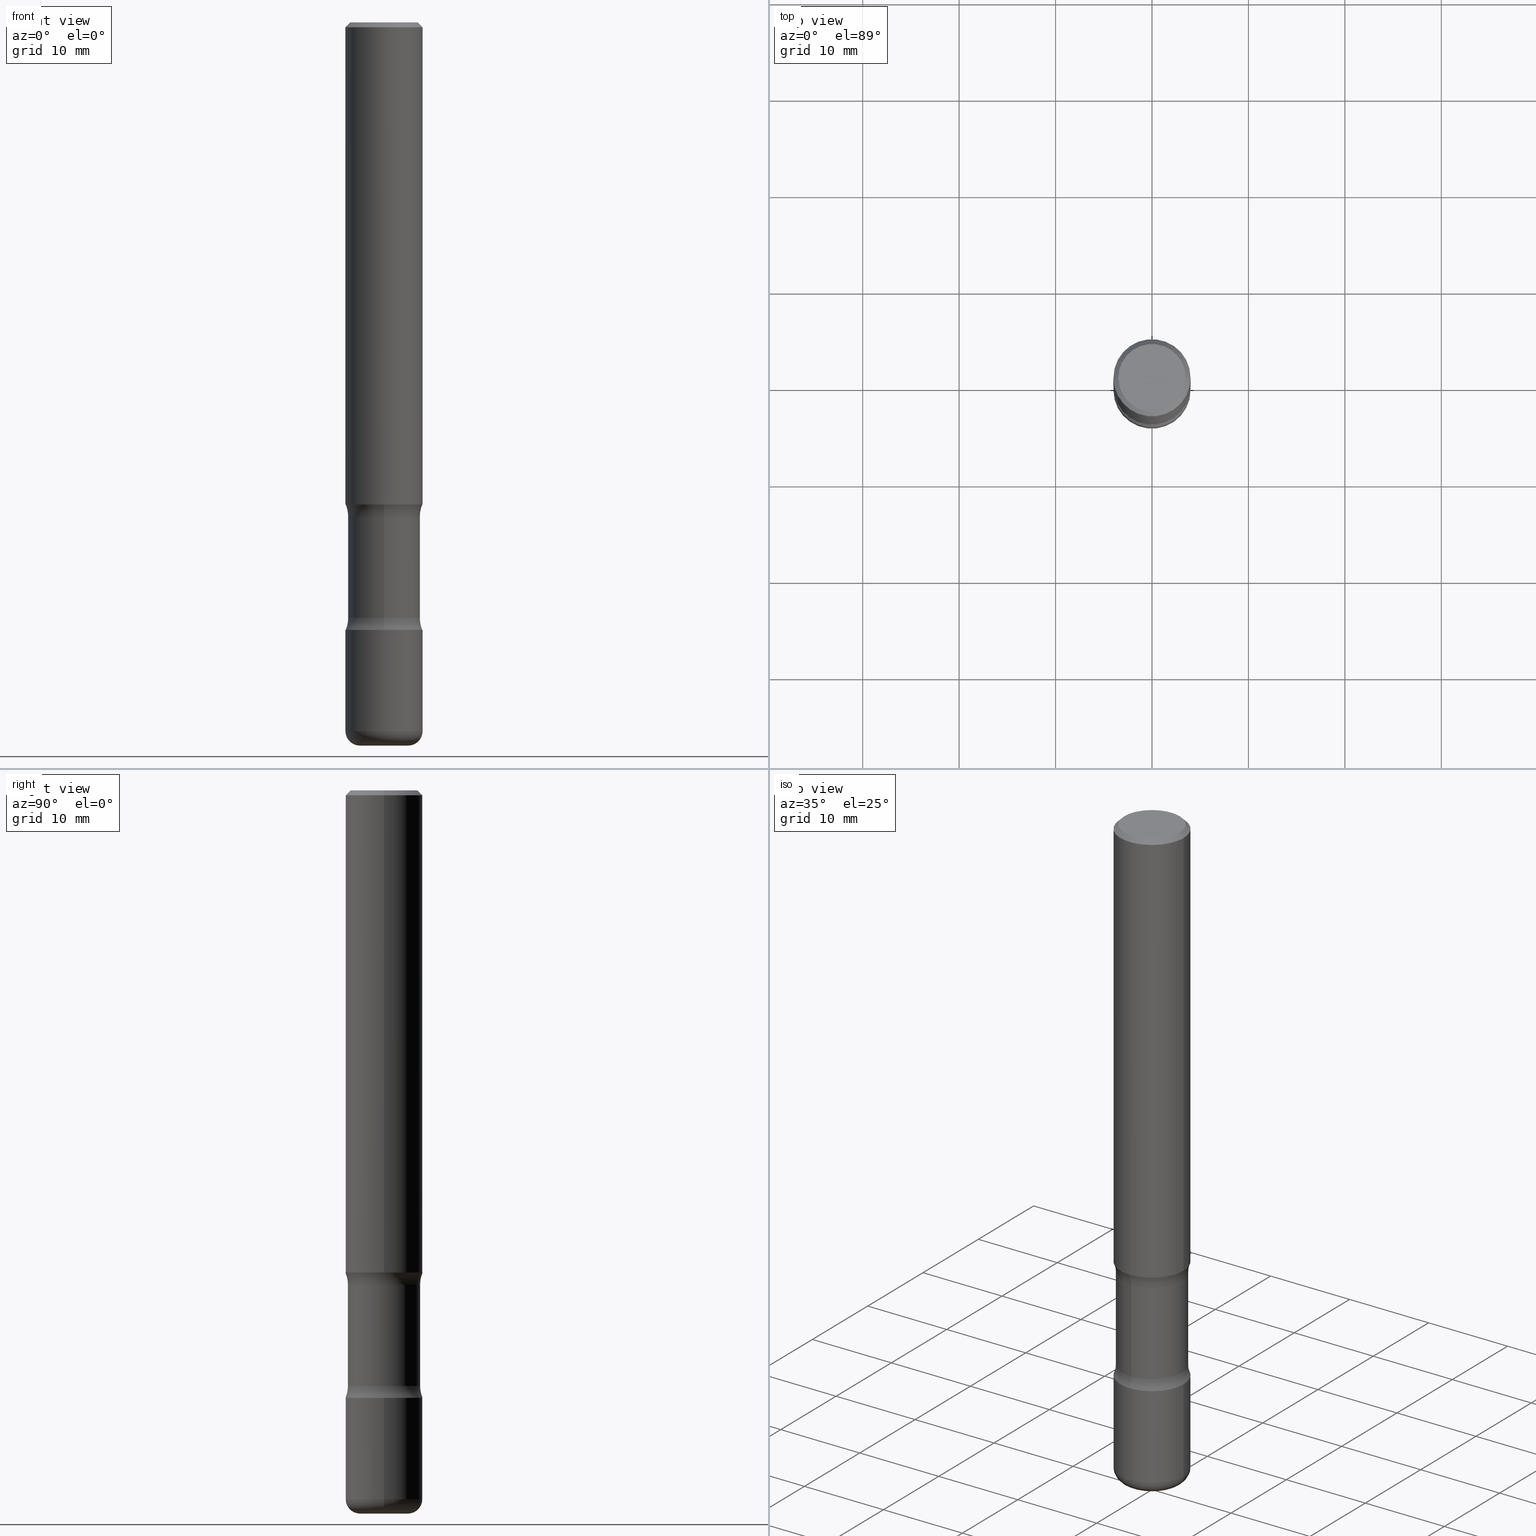
[diagram: canonical four-view strip — front | top / right | iso, engineering-drawing reading convention]
A machine part, canonical four-view strip (front | top / right | iso — engineering-drawing reading convention). The complete STEP part file that produces these views, byte-faithful:
ISO-10303-21;
HEADER;
FILE_DESCRIPTION (( 'STEP AP203' ),
    '1' );
FILE_NAME ('44796.STEP',
    '2024-03-02T03:25:42',
    ( '' ),
    ( '' ),
    'SwSTEP 2.0',
    'SolidWorks 2023',
    '' );
FILE_SCHEMA (( 'CONFIG_CONTROL_DESIGN' ));
ENDSEC;

DATA;
#1 = DIRECTION ( 'NONE',  ( 2.474888810202925163E-29, -3.449350218607033250E-15, -1.000000000000000000 ) ) ;
#2 = VERTEX_POINT ( 'NONE', #59 ) ;
#3 = AXIS2_PLACEMENT_3D ( 'NONE', #246, #336, #368 ) ;
#4 = ORIENTED_EDGE ( 'NONE', *, *, #415, .T. ) ;
#5 = EDGE_CURVE ( 'NONE', #211, #49, #96, .T. ) ;
#6 = VERTEX_POINT ( 'NONE', #195 ) ;
#7 = ORIENTED_EDGE ( 'NONE', *, *, #556, .F. ) ;
#8 = ORIENTED_EDGE ( 'NONE', *, *, #556, .T. ) ;
#9 = AXIS2_PLACEMENT_3D ( 'NONE', #123, #296, #466 ) ;
#10 =( LENGTH_UNIT ( ) NAMED_UNIT ( * ) SI_UNIT ( $, .METRE. ) );
#11 = ADVANCED_FACE ( 'NONE', ( #318 ), #238, .F. ) ;
#12 =( GEOMETRIC_REPRESENTATION_CONTEXT ( 3 ) GLOBAL_UNCERTAINTY_ASSIGNED_CONTEXT ( ( #310 ) ) GLOBAL_UNIT_ASSIGNED_CONTEXT ( ( #283, #321, #417 ) ) REPRESENTATION_CONTEXT ( 'NONE', 'WORKASPACE' ) );
#13 = DIMENSIONAL_EXPONENTS ( 1.000000000000000000, 0.000000000000000000, 0.000000000000000000, 0.000000000000000000, 0.000000000000000000, 0.000000000000000000, 0.000000000000000000 ) ;
#14 = CARTESIAN_POINT ( 'NONE',  ( 0.000000000000000000, 0.000000000000000000, 0.000000000000000000 ) ) ;
#15 = ORIENTED_EDGE ( 'NONE', *, *, #443, .T. ) ;
#16 = CARTESIAN_POINT ( 'NONE',  ( 7.076453084457931092E-29, -1.010329955021041128E-14, -2.893700000000000383 ) ) ;
#17 = DIRECTION ( 'NONE',  ( 1.000000000000000000, -6.982962677686269866E-15, 0.000000000000000000 ) ) ;
#18 = EDGE_CURVE ( 'NONE', #190, #436, #237, .T. ) ;
#19 = DIRECTION ( 'NONE',  ( 1.000000000000000000, -6.982962677686265922E-15, 0.000000000000000000 ) ) ;
#20 = CARTESIAN_POINT ( 'NONE',  ( -0.09840000000000016789, -9.297333393368175082E-15, -2.952800000000000757 ) ) ;
#21 = CIRCLE ( 'NONE', #521, 0.1473500000000000087 ) ;
#22 = LOCAL_TIME ( 22, 25, 42.00000000000000000, #151 ) ;
#23 = ORIENTED_EDGE ( 'NONE', *, *, #143, .T. ) ;
#24 = DIRECTION ( 'NONE',  ( 2.438088387897960049E-29, -3.491481338843145188E-15, -1.000000000000000000 ) ) ;
#25 = PRODUCT_DEFINITION_SHAPE ( 'NONE', 'NONE',  #245 ) ;
#26 = PERSON_AND_ORGANIZATION ( #179, #87 ) ;
#27 = ORIENTED_EDGE ( 'NONE', *, *, #508, .F. ) ;
#28 = DIRECTION ( 'NONE',  ( 0.000000000000000000, 0.000000000000000000, 1.000000000000000000 ) ) ;
#29 = TOROIDAL_SURFACE ( 'NONE', #9, 0.2723499999999999810, 0.1250000000000000555 ) ;
#30 = DIRECTION ( 'NONE',  ( 6.982962677686265133E-15, 1.000000000000000000, -3.469013325287950138E-15 ) ) ;
#31 = DIRECTION ( 'NONE',  ( 2.474888810202925163E-29, -3.449350218607033250E-15, -1.000000000000000000 ) ) ;
#32 = MANIFOLD_SOLID_BREP ( 'Body-Move/Copy2[2]', #53 ) ;
#33 = DIRECTION ( 'NONE',  ( -1.000000000000000000, 6.982962677686265922E-15, -4.883557194083112340E-29 ) ) ;
#34 = PERSON_AND_ORGANIZATION_ROLE ( 'creator' ) ;
#35 = CYLINDRICAL_SURFACE ( 'NONE', #333, 0.1473500000000000087 ) ;
#36 = DIRECTION ( 'NONE',  ( -6.982962677686265922E-15, -1.000000000000000000, 0.000000000000000000 ) ) ;
#37 = EDGE_CURVE ( 'NONE', #130, #234, #95, .T. ) ;
#38 = CARTESIAN_POINT ( 'NONE',  ( 7.076453084457931092E-29, -1.010329955021041128E-14, -2.893700000000000383 ) ) ;
#39 = TOROIDAL_SURFACE ( 'NONE', #343, 0.2723500000000000365, 0.1250000000000000000 ) ;
#40 = CARTESIAN_POINT ( 'NONE',  ( 4.890937612370273159E-31, -6.982962677686291609E-17, -0.02000000000000000042 ) ) ;
#41 = LOCAL_TIME ( 22, 25, 42.00000000000000000, #490 ) ;
#42 = DIRECTION ( 'NONE',  ( 2.474888810202925163E-29, -3.449350218607033250E-15, -1.000000000000000000 ) ) ;
#43 = CARTESIAN_POINT ( 'NONE',  ( -0.1575000000000001399, -8.262680122716315885E-15, -2.480399999999999494 ) ) ;
#44 = DIRECTION ( 'NONE',  ( 6.982962677686265922E-15, 1.000000000000000000, -3.449350218607032856E-15 ) ) ;
#45 = ORIENTED_EDGE ( 'NONE', *, *, #390, .F. ) ;
#46 = EDGE_LOOP ( 'NONE', ( #484, #340 ) ) ;
#47 = EDGE_CURVE ( 'NONE', #355, #2, #322, .T. ) ;
#48 = CC_DESIGN_SECURITY_CLASSIFICATION ( #207, ( #157 ) ) ;
#49 = VERTEX_POINT ( 'NONE', #68 ) ;
#50 = CC_DESIGN_PERSON_AND_ORGANIZATION_ASSIGNMENT ( #69, #244, ( #104 ) ) ;
#51 = EDGE_CURVE ( 'NONE', #49, #234, #418, .T. ) ;
#52 = DIRECTION ( 'NONE',  ( -2.445468806185136597E-29, 3.491481338843145583E-15, 1.000000000000000000 ) ) ;
#53 = CLOSED_SHELL ( 'NONE', ( #396, #345, #112, #176, #272, #462 ) ) ;
#54 = AXIS2_PLACEMENT_3D ( 'NONE', #255, #560, #221 ) ;
#55 = DIRECTION ( 'NONE',  ( 6.860497997771530774E-15, 1.000000000000000000, 0.000000000000000000 ) ) ;
#56 = CC_DESIGN_APPROVAL ( #224, ( #207 ) ) ;
#57 = EDGE_LOOP ( 'NONE', ( #140, #175, #102, #153 ) ) ;
#58 = CARTESIAN_POINT ( 'NONE',  ( 0.000000000000000000, 0.000000000000000000, 0.000000000000000000 ) ) ;
#59 = CARTESIAN_POINT ( 'NONE',  ( 0.1374999999999999278, -1.046838268059731900E-15, 4.268512490107428597E-18 ) ) ;
#60 = LINE ( 'NONE', #258, #539 ) ;
#61 = DIRECTION ( 'NONE',  ( 1.000000000000000000, -6.982962677686268288E-15, 0.000000000000000000 ) ) ;
#62 = CARTESIAN_POINT ( 'NONE',  ( 7.076453084457931092E-29, -1.010329955021041128E-14, -2.893700000000000383 ) ) ;
#63 = CARTESIAN_POINT ( 'NONE',  ( -1.010894379971562693E-15, -0.1473500000000103061, -2.952799999999998981 ) ) ;
#64 = DIRECTION ( 'NONE',  ( 1.000000000000000000, -6.982962677686266711E-15, 0.000000000000000000 ) ) ;
#65 = DIRECTION ( 'NONE',  ( -2.445468806185136597E-29, 3.491481338843145583E-15, 1.000000000000000000 ) ) ;
#66 = APPROVAL ( #370, 'UNSPECIFIED' ) ;
#67 = MECHANICAL_CONTEXT ( 'NONE', #328, 'mechanical' ) ;
#68 = CARTESIAN_POINT ( 'NONE',  ( -0.1575000000000003064, -8.984194741388252103E-15, -2.893700000000000383 ) ) ;
#69 = PERSON_AND_ORGANIZATION ( #179, #87 ) ;
#70 = CARTESIAN_POINT ( 'NONE',  ( 7.234878300801473340E-29, -1.028974335613649852E-14, -2.952799999999999869 ) ) ;
#71 = APPROVAL_STATUS ( 'not_yet_approved' ) ;
#72 = CIRCLE ( 'NONE', #391, 0.05910000000000026343 ) ;
#73 = AXIS2_PLACEMENT_3D ( 'NONE', #291, #299, #337 ) ;
#74 = AXIS2_PLACEMENT_3D ( 'NONE', #270, #108, #487 ) ;
#75 = DIRECTION ( 'NONE',  ( 2.474888810202925163E-29, -3.449350218607033250E-15, -1.000000000000000000 ) ) ;
#76 = DIRECTION ( 'NONE',  ( -2.438088387897960049E-29, 3.491481338843145188E-15, 1.000000000000000000 ) ) ;
#77 = EDGE_CURVE ( 'NONE', #439, #6, #273, .T. ) ;
#78 = CARTESIAN_POINT ( 'NONE',  ( 5.945080357611152317E-29, -8.487999141114716497E-15, -2.431059575397043204 ) ) ;
#79 = DATE_TIME_ROLE ( 'classification_date' ) ;
#80 = FACE_OUTER_BOUND ( 'NONE', #301, .T. ) ;
#81 = ORIENTED_EDGE ( 'NONE', *, *, #519, .T. ) ;
#82 = FACE_OUTER_BOUND ( 'NONE', #142, .T. ) ;
#83 = FACE_OUTER_BOUND ( 'NONE', #147, .T. ) ;
#84 = CIRCLE ( 'NONE', #379, 0.1574999999999999178 ) ;
#85 = TOROIDAL_SURFACE ( 'NONE', #421, 0.09840000000000016789, 0.05910000000000024956 ) ;
#86 = DIRECTION ( 'NONE',  ( -2.445468806185136597E-29, 3.491481338843145583E-15, 1.000000000000000000 ) ) ;
#87 = ORGANIZATION ( 'UNSPECIFIED', 'UNSPECIFIED', '' ) ;
#88 = CC_DESIGN_PERSON_AND_ORGANIZATION_ASSIGNMENT ( #202, #549, ( #207 ) ) ;
#89 = DIRECTION ( 'NONE',  ( 6.982962677686265133E-15, 1.000000000000000000, -3.707971487837480522E-15 ) ) ;
#90 = ORIENTED_EDGE ( 'NONE', *, *, #18, .T. ) ;
#91 = EDGE_CURVE ( 'NONE', #414, #211, #72, .T. ) ;
#92 = FACE_OUTER_BOUND ( 'NONE', #57, .T. ) ;
#93 = ORIENTED_EDGE ( 'NONE', *, *, #91, .F. ) ;
#94 = ORIENTED_EDGE ( 'NONE', *, *, #77, .F. ) ;
#95 = CIRCLE ( 'NONE', #205, 0.1575000000000001399 ) ;
#96 = CIRCLE ( 'NONE', #367, 0.1575000000000001954 ) ;
#97 = AXIS2_PLACEMENT_3D ( 'NONE', #191, #52, #61 ) ;
#98 = ADVANCED_FACE ( 'NONE', ( #468 ), #429, .T. ) ;
#99 = CARTESIAN_POINT ( 'NONE',  ( 1.901809885267914178E-15, 0.2723499999999915433, -2.431059575397044092 ) ) ;
#100 = VERTEX_POINT ( 'NONE', #458 ) ;
#101 = CIRCLE ( 'NONE', #369, 0.09840000000000016789 ) ;
#102 = ORIENTED_EDGE ( 'NONE', *, *, #91, .T. ) ;
#103 = DIRECTION ( 'NONE',  ( -2.445468806185136597E-29, 3.491481338843145583E-15, 1.000000000000000000 ) ) ;
#104 = PRODUCT ( '44796', '44796', '', ( #67 ) ) ;
#105 = ORIENTED_EDGE ( 'NONE', *, *, #249, .F. ) ;
#106 = FACE_OUTER_BOUND ( 'NONE', #181, .T. ) ;
#107 = APPLICATION_CONTEXT ( 'configuration controlled 3d designs of mechanical parts and assemblies' ) ;
#108 = DIRECTION ( 'NONE',  ( 2.474888810202925163E-29, -3.449350218607033250E-15, -1.000000000000000000 ) ) ;
#109 = ORIENTED_EDGE ( 'NONE', *, *, #77, .T. ) ;
#110 = CALENDAR_DATE ( 2024, 1, 3 ) ;
#111 = AXIS2_PLACEMENT_3D ( 'NONE', #210, #76, #334 ) ;
#112 = ADVANCED_FACE ( 'NONE', ( #558 ), #136, .T. ) ;
#113 = ORIENTED_EDGE ( 'NONE', *, *, #5, .T. ) ;
#114 = DIRECTION ( 'NONE',  ( 1.000000000000000000, -6.982962677686267499E-15, 4.876176775795935232E-29 ) ) ;
#115 = PERSON_AND_ORGANIZATION_ROLE ( 'creator' ) ;
#116 = DIRECTION ( 'NONE',  ( -2.445468806185136877E-29, 3.491481338843145188E-15, 1.000000000000000000 ) ) ;
#117 = EDGE_CURVE ( 'NONE', #126, #453, #84, .T. ) ;
#118 = DIRECTION ( 'NONE',  ( -2.445468806185136597E-29, 3.491481338843145583E-15, 1.000000000000000000 ) ) ;
#119 = CIRCLE ( 'NONE', #137, 0.1575000000000001676 ) ;
#120 = CARTESIAN_POINT ( 'NONE',  ( 1.901809885267903923E-15, 0.2723499999999929866, -2.017840424602957317 ) ) ;
#121 = DATE_AND_TIME ( #504, #138 ) ;
#122 = PLANE ( 'NONE',  #111 ) ;
#123 = CARTESIAN_POINT ( 'NONE',  ( 4.934565814225900815E-29, -7.045252187264551691E-15, -2.017840424602956428 ) ) ;
#124 = CARTESIAN_POINT ( 'NONE',  ( 4.920957309659253149E-29, -7.064740340351969652E-15, -2.017840424602956428 ) ) ;
#125 = CARTESIAN_POINT ( 'NONE',  ( -1.567689451104442985E-28, -4.310070607982313080E-14, -2.952800000000000313 ) ) ;
#126 = VERTEX_POINT ( 'NONE', #250 ) ;
#127 = AXIS2_PLACEMENT_3D ( 'NONE', #425, #559, #263 ) ;
#128 = ADVANCED_FACE ( 'NONE', ( #495 ), #338, .T. ) ;
#129 = DIRECTION ( 'NONE',  ( -2.445468806185136597E-29, 3.491481338843145583E-15, 1.000000000000000000 ) ) ;
#130 = VERTEX_POINT ( 'NONE', #509 ) ;
#131 = ORIENTED_EDGE ( 'NONE', *, *, #51, .F. ) ;
#132 = CC_DESIGN_PERSON_AND_ORGANIZATION_ASSIGNMENT ( #372, #34, ( #245 ) ) ;
#133 = ORIENTED_EDGE ( 'NONE', *, *, #481, .T. ) ;
#134 = EDGE_LOOP ( 'NONE', ( #349, #476, #386, #93 ) ) ;
#135 = EDGE_CURVE ( 'NONE', #2, #355, #483, .T. ) ;
#136 = CONICAL_SURFACE ( 'NONE', #520, 0.1574999999999999178, 0.7853981633974479459 ) ;
#137 = AXIS2_PLACEMENT_3D ( 'NONE', #150, #455, #204 ) ;
#138 = LOCAL_TIME ( 22, 25, 42.00000000000000000, #166 ) ;
#139 = CC_DESIGN_DATE_AND_TIME_ASSIGNMENT ( #422, #424, ( #245 ) ) ;
#140 = ORIENTED_EDGE ( 'NONE', *, *, #305, .F. ) ;
#141 = CARTESIAN_POINT ( 'NONE',  ( 7.220980290903473546E-29, -1.030964609733604168E-14, -2.952800000000000757 ) ) ;
#142 = EDGE_LOOP ( 'NONE', ( #243, #225, #269, #480 ) ) ;
#143 = EDGE_CURVE ( 'NONE', #178, #439, #351, .T. ) ;
#144 = DIRECTION ( 'NONE',  ( -2.445468806185136597E-29, 3.491481338843145583E-15, 1.000000000000000000 ) ) ;
#145 = CIRCLE ( 'NONE', #54, 0.1250000000000000000 ) ;
#146 = CARTESIAN_POINT ( 'NONE',  ( 4.798845244918734808E-29, -6.894547935961596556E-15, -1.968499999999999694 ) ) ;
#147 = EDGE_LOOP ( 'NONE', ( #4, #15, #193, #346 ) ) ;
#148 = DIRECTION ( 'NONE',  ( 1.000000000000000000, -6.982962677686267499E-15, 4.876176775795935232E-29 ) ) ;
#149 = ORIENTED_EDGE ( 'NONE', *, *, #361, .T. ) ;
#150 = CARTESIAN_POINT ( 'NONE',  ( 4.813905344975440714E-29, -6.872981015512730918E-15, -1.968499999999999694 ) ) ;
#151 = COORDINATED_UNIVERSAL_TIME_OFFSET ( 5, 0, .BEHIND. ) ;
#152 = ADVANCED_FACE ( 'NONE', ( #285 ), #513, .F. ) ;
#153 = ORIENTED_EDGE ( 'NONE', *, *, #332, .F. ) ;
#154 = DIRECTION ( 'NONE',  ( 2.474888810202925163E-29, -3.449350218607032856E-15, -1.000000000000000000 ) ) ;
#155 = DATE_AND_TIME ( #542, #41 ) ;
#156 = CONICAL_SURFACE ( 'NONE', #73, 0.1574999999999999178, 0.7853981633974479459 ) ;
#157 = PRODUCT_DEFINITION_FORMATION_WITH_SPECIFIED_SOURCE ( 'ANY', '', #104, .NOT_KNOWN. ) ;
#158 = CARTESIAN_POINT ( 'NONE',  ( -0.1575000000000001676, 1.119104808822158984E-15, -7.747322767151485392E-30 ) ) ;
#159 = CARTESIAN_POINT ( 'NONE',  ( 1.099816621735635798E-15, 0.1574999999999932565, -1.968500000000000361 ) ) ;
#160 = EDGE_LOOP ( 'NONE', ( #304, #317 ) ) ;
#161 = CARTESIAN_POINT ( 'NONE',  ( 4.890937612370273159E-31, -6.982962677686291609E-17, -0.02000000000000000042 ) ) ;
#162 = CALENDAR_DATE ( 2024, 1, 3 ) ;
#163 = LINE ( 'NONE', #330, #324 ) ;
#164 = DIRECTION ( 'NONE',  ( -2.445468806185136597E-29, 3.491481338843145583E-15, 1.000000000000000000 ) ) ;
#165 = EDGE_CURVE ( 'NONE', #355, #126, #553, .T. ) ;
#166 = COORDINATED_UNIVERSAL_TIME_OFFSET ( 5, 0, .BEHIND. ) ;
#167 = DIRECTION ( 'NONE',  ( 1.000000000000000000, -6.982962677686267499E-15, 0.000000000000000000 ) ) ;
#168 = AXIS2_PLACEMENT_3D ( 'NONE', #452, #489, #365 ) ;
#169 = VECTOR ( 'NONE', #353, 39.37007874015748143 ) ;
#170 = APPROVAL_PERSON_ORGANIZATION ( #254, #224, #381 ) ;
#171 = DIRECTION ( 'NONE',  ( -2.445468806185136597E-29, 3.491481338843145583E-15, 1.000000000000000000 ) ) ;
#172 = CARTESIAN_POINT ( 'NONE',  ( 7.220980290903473546E-29, -1.030964609733604168E-14, -2.952800000000000757 ) ) ;
#173 = CARTESIAN_POINT ( 'NONE',  ( 0.09840000000000016789, -1.079042307769474191E-14, -2.893700000000000383 ) ) ;
#174 = CARTESIAN_POINT ( 'NONE',  ( 5.945080357611152317E-29, -8.487999141114716497E-15, -2.431059575397043204 ) ) ;
#175 = ORIENTED_EDGE ( 'NONE', *, *, #286, .T. ) ;
#176 = ADVANCED_FACE ( 'NONE', ( #292 ), #371, .F. ) ;
#177 = CARTESIAN_POINT ( 'NONE',  ( 4.813905344975440714E-29, -6.872981015512730918E-15, -1.968499999999999694 ) ) ;
#178 = VERTEX_POINT ( 'NONE', #423 ) ;
#179 = PERSON ( 'UNSPECIFIED', 'UNSPECIFIED', 'UNSPECIFIED', ('UNSPECIFIED'), ('UNSPECIFIED'), ('UNSPECIFIED') ) ;
#180 = ORIENTED_EDGE ( 'NONE', *, *, #212, .F. ) ;
#181 = EDGE_LOOP ( 'NONE', ( #229, #81, #7, #533 ) ) ;
#182 = ADVANCED_FACE ( 'NONE', ( #463 ), #544, .T. ) ;
#183 = ORIENTED_EDGE ( 'NONE', *, *, #481, .F. ) ;
#184 = EDGE_LOOP ( 'NONE', ( #105, #271 ) ) ;
#185 = CIRCLE ( 'NONE', #168, 0.1473499999999999810 ) ;
#186 = EDGE_LOOP ( 'NONE', ( #94, #488 ) ) ;
#187 = CIRCLE ( 'NONE', #555, 0.1575000000000001399 ) ;
#188 = FACE_OUTER_BOUND ( 'NONE', #395, .T. ) ;
#189 = CC_DESIGN_PERSON_AND_ORGANIZATION_ASSIGNMENT ( #26, #457, ( #157 ) ) ;
#190 = VERTEX_POINT ( 'NONE', #288 ) ;
#191 = CARTESIAN_POINT ( 'NONE',  ( 6.065740826861612418E-29, -8.660270312866537270E-15, -2.480399999999999494 ) ) ;
#192 = EDGE_CURVE ( 'NONE', #357, #233, #21, .T. ) ;
#193 = ORIENTED_EDGE ( 'NONE', *, *, #192, .F. ) ;
#194 = CARTESIAN_POINT ( 'NONE',  ( 0.000000000000000000, 0.000000000000000000, 0.000000000000000000 ) ) ;
#195 = CARTESIAN_POINT ( 'NONE',  ( -1.080528434648969237E-15, -0.1575000000000070233, -1.968499999999999472 ) ) ;
#196 = PRODUCT_RELATED_PRODUCT_CATEGORY ( 'detail', '', ( #104 ) ) ;
#197 = VECTOR ( 'NONE', #420, 39.37007874015748143 ) ;
#198 = ORIENTED_EDGE ( 'NONE', *, *, #543, .T. ) ;
#199 = ADVANCED_FACE ( 'NONE', ( #82 ), #29, .F. ) ;
#200 = CYLINDRICAL_SURFACE ( 'NONE', #218, 0.1575000000000000289 ) ;
#201 = DIRECTION ( 'NONE',  ( -2.445468806185136597E-29, 3.491481338843145583E-15, 1.000000000000000000 ) ) ;
#202 = PERSON_AND_ORGANIZATION ( #179, #87 ) ;
#203 = DIRECTION ( 'NONE',  ( 6.982962677686265922E-15, 1.000000000000000000, -3.449350218607033250E-15 ) ) ;
#204 = DIRECTION ( 'NONE',  ( 1.000000000000000000, -6.982962677686267499E-15, 0.000000000000000000 ) ) ;
#205 = AXIS2_PLACEMENT_3D ( 'NONE', #280, #201, #364 ) ;
#206 = AXIS2_PLACEMENT_3D ( 'NONE', #14, #447, #148 ) ;
#207 = SECURITY_CLASSIFICATION ( '', '', #214 ) ;
#208 = CARTESIAN_POINT ( 'NONE',  ( -1.043851414335219820E-46, 1.490343170380447200E-32, 4.268512490100411279E-18 ) ) ;
#209 = CARTESIAN_POINT ( 'NONE',  ( 0.000000000000000000, 0.000000000000000000, 0.000000000000000000 ) ) ;
#210 = CARTESIAN_POINT ( 'NONE',  ( 4.813905344975440714E-29, -6.872981015512730918E-15, -1.968499999999999694 ) ) ;
#211 = VERTEX_POINT ( 'NONE', #506 ) ;
#212 = EDGE_CURVE ( 'NONE', #436, #233, #145, .T. ) ;
#213 = DIRECTION ( 'NONE',  ( -6.982962677686266711E-15, -1.000000000000000000, 3.491481338843145583E-15 ) ) ;
#214 = SECURITY_CLASSIFICATION_LEVEL ( 'unclassified' ) ;
#215 = CARTESIAN_POINT ( 'NONE',  ( 1.028939550557143658E-15, 0.1473499999999897114, -2.952800000000000313 ) ) ;
#216 = DIRECTION ( 'NONE',  ( 0.7071067811865472397, -7.319954787623254468E-15, -0.7071067811865477948 ) ) ;
#217 = DIRECTION ( 'NONE',  ( 1.000000000000000000, -6.982962677686265922E-15, 0.000000000000000000 ) ) ;
#218 = AXIS2_PLACEMENT_3D ( 'NONE', #58, #534, #527 ) ;
#219 = DIRECTION ( 'NONE',  ( 6.982962677686265133E-15, 1.000000000000000000, -3.707971487837479733E-15 ) ) ;
#220 = CARTESIAN_POINT ( 'NONE',  ( 1.028939550557130839E-15, 0.1473499999999915433, -2.431059575397043648 ) ) ;
#221 = DIRECTION ( 'NONE',  ( 6.860497997771530774E-15, 1.000000000000000000, 0.000000000000000000 ) ) ;
#222 = DIRECTION ( 'NONE',  ( -2.445468806185136597E-29, 3.491481338843145583E-15, 1.000000000000000000 ) ) ;
#223 = EDGE_LOOP ( 'NONE', ( #389, #442, #393, #511 ) ) ;
#224 = APPROVAL ( #427, 'UNSPECIFIED' ) ;
#225 = ORIENTED_EDGE ( 'NONE', *, *, #469, .T. ) ;
#226 = MANIFOLD_SOLID_BREP ( 'Body-Move/Copy2[4]', #267 ) ;
#227 = CIRCLE ( 'NONE', #74, 0.1575000000000001399 ) ;
#228 = ORIENTED_EDGE ( 'NONE', *, *, #443, .F. ) ;
#229 = ORIENTED_EDGE ( 'NONE', *, *, #249, .T. ) ;
#230 = CC_DESIGN_DATE_AND_TIME_ASSIGNMENT ( #121, #79, ( #207 ) ) ;
#231 = AXIS2_PLACEMENT_3D ( 'NONE', #515, #129, #167 ) ;
#232 = MANIFOLD_SOLID_BREP ( 'Body-Move/Copy2[1]', #501 ) ;
#233 = VERTEX_POINT ( 'NONE', #341 ) ;
#234 = VERTEX_POINT ( 'NONE', #43 ) ;
#235 = CARTESIAN_POINT ( 'NONE',  ( -0.1575000000000001676, -2.352300512322635166E-15, -1.968499999999999694 ) ) ;
#236 = ADVANCED_FACE ( 'NONE', ( #387 ), #39, .F. ) ;
#237 = CIRCLE ( 'NONE', #448, 0.1575000000000001399 ) ;
#238 = PLANE ( 'NONE',  #410 ) ;
#239 = CIRCLE ( 'NONE', #302, 0.09840000000000016789 ) ;
#240 = CIRCLE ( 'NONE', #492, 0.1250000000000000000 ) ;
#241 = ORIENTED_EDGE ( 'NONE', *, *, #135, .F. ) ;
#242 = APPROVAL_ROLE ( '' ) ;
#243 = ORIENTED_EDGE ( 'NONE', *, *, #361, .F. ) ;
#244 = PERSON_AND_ORGANIZATION_ROLE ( 'design_owner' ) ;
#245 = PRODUCT_DEFINITION ( 'UNKNOWN', '', #157, #261 ) ;
#246 = CARTESIAN_POINT ( 'NONE',  ( 9.601573681818610811E-16, 0.1374999999999999278, -4.779444278458821021E-16 ) ) ;
#247 = CALENDAR_DATE ( 2024, 1, 3 ) ;
#248 = CIRCLE ( 'NONE', #127, 0.05910000000000026343 ) ;
#249 = EDGE_CURVE ( 'NONE', #100, #486, #290, .T. ) ;
#250 = CARTESIAN_POINT ( 'NONE',  ( -0.1574999999999999178, 1.029986994958723590E-15, -0.02000000000000000042 ) ) ;
#251 = APPLICATION_PROTOCOL_DEFINITION ( 'international standard', 'config_control_design', 1994, #107 ) ;
#252 = FACE_OUTER_BOUND ( 'NONE', #186, .T. ) ;
#253 = DIRECTION ( 'NONE',  ( 2.474888810202925163E-29, -3.449350218607033250E-15, -1.000000000000000000 ) ) ;
#254 = PERSON_AND_ORGANIZATION ( #179, #87 ) ;
#255 = CARTESIAN_POINT ( 'NONE',  ( -1.868456629693017352E-15, -0.2723500000000085297, -2.431059575397042316 ) ) ;
#256 = CARTESIAN_POINT ( 'NONE',  ( 7.234878300801473340E-29, -1.028974335613649852E-14, -2.952799999999999869 ) ) ;
#257 = DIRECTION ( 'NONE',  ( 1.000000000000000000, -6.982962677686266711E-15, 0.000000000000000000 ) ) ;
#258 = CARTESIAN_POINT ( 'NONE',  ( 0.1574999999999999178, -1.150358061425878486E-15, -0.02000000000000000042 ) ) ;
#259 = DIRECTION ( 'NONE',  ( -6.982962677686265922E-15, -1.000000000000000000, 3.449350218607032856E-15 ) ) ;
#260 = EDGE_LOOP ( 'NONE', ( #113, #397, #277, #183 ) ) ;
#261 = DESIGN_CONTEXT ( 'detailed design', #107, 'design' ) ;
#262 = VERTEX_POINT ( 'NONE', #546 ) ;
#263 = DIRECTION ( 'NONE',  ( -1.000000000000000000, 7.105427357600993181E-15, 0.000000000000000000 ) ) ;
#264 = EDGE_LOOP ( 'NONE', ( #90, #198 ) ) ;
#265 = ORIENTED_EDGE ( 'NONE', *, *, #117, .T. ) ;
#266 = EDGE_CURVE ( 'NONE', #100, #453, #163, .T. ) ;
#267 = CLOSED_SHELL ( 'NONE', ( #366, #236, #199, #325, #375, #278, #152, #182 ) ) ;
#268 = AXIS2_PLACEMENT_3D ( 'NONE', #120, #33, #36 ) ;
#269 = ORIENTED_EDGE ( 'NONE', *, *, #523, .T. ) ;
#270 = CARTESIAN_POINT ( 'NONE',  ( 6.065740826861612418E-29, -8.660270312866537270E-15, -2.480399999999999494 ) ) ;
#271 = ORIENTED_EDGE ( 'NONE', *, *, #406, .F. ) ;
#272 = ADVANCED_FACE ( 'NONE', ( #510 ), #122, .F. ) ;
#273 = CIRCLE ( 'NONE', #315, 0.1575000000000001399 ) ;
#274 = AXIS2_PLACEMENT_3D ( 'NONE', #70, #547, #219 ) ;
#275 = EDGE_LOOP ( 'NONE', ( #180, #512, #516, #320 ) ) ;
#276 = APPROVAL ( #71, 'UNSPECIFIED' ) ;
#277 = ORIENTED_EDGE ( 'NONE', *, *, #37, .F. ) ;
#278 = ADVANCED_FACE ( 'NONE', ( #303 ), #557, .F. ) ;
#279 = ORIENTED_EDGE ( 'NONE', *, *, #475, .F. ) ;
#280 = CARTESIAN_POINT ( 'NONE',  ( 6.065740826861612418E-29, -8.660270312866537270E-15, -2.480399999999999494 ) ) ;
#281 = AXIS2_PLACEMENT_3D ( 'NONE', #497, #164, #114 ) ;
#282 = VECTOR ( 'NONE', #482, 39.37007874015748143 ) ;
#283 =( CONVERSION_BASED_UNIT ( 'INCH', #494 ) LENGTH_UNIT ( ) NAMED_UNIT ( #13 ) );
#284 = DIRECTION ( 'NONE',  ( -1.000000000000000000, 6.982962677686265922E-15, -4.876176775795935793E-29 ) ) ;
#285 = FACE_OUTER_BOUND ( 'NONE', #275, .T. ) ;
#286 = EDGE_CURVE ( 'NONE', #517, #414, #101, .T. ) ;
#287 = CARTESIAN_POINT ( 'NONE',  ( 0.1574999999999999178, -1.150358061425878486E-15, -0.02000000000000000042 ) ) ;
#288 = CARTESIAN_POINT ( 'NONE',  ( 1.099816621735648420E-15, 0.1574999999999914524, -2.480399999999999938 ) ) ;
#289 = COORDINATED_UNIVERSAL_TIME_OFFSET ( 5, 0, .BEHIND. ) ;
#290 = CIRCLE ( 'NONE', #231, 0.1575000000000001676 ) ;
#291 = CARTESIAN_POINT ( 'NONE',  ( 4.890937612370273159E-31, -6.982962677686291609E-17, -0.02000000000000000042 ) ) ;
#292 = FACE_OUTER_BOUND ( 'NONE', #46, .T. ) ;
#293 = DATE_AND_TIME ( #162, #554 ) ;
#294 = CARTESIAN_POINT ( 'NONE',  ( 7.076453084457931092E-29, -1.010329955021041128E-14, -2.893700000000000383 ) ) ;
#295 = EDGE_CURVE ( 'NONE', #178, #357, #461, .T. ) ;
#296 = DIRECTION ( 'NONE',  ( 2.474888810202925163E-29, -3.449350218607033250E-15, -1.000000000000000000 ) ) ;
#297 = CARTESIAN_POINT ( 'NONE',  ( -0.1374999999999999278, 9.950721815702923357E-16, 4.268512490093574228E-18 ) ) ;
#298 = DIRECTION ( 'NONE',  ( 2.438088387897960049E-29, -3.491481338843145188E-15, -1.000000000000000000 ) ) ;
#299 = DIRECTION ( 'NONE',  ( 2.445468806185136597E-29, -3.491481338843145583E-15, -1.000000000000000000 ) ) ;
#300 = AXIS2_PLACEMENT_3D ( 'NONE', #208, #171, #433 ) ;
#301 = EDGE_LOOP ( 'NONE', ( #518, #352, #23, #109 ) ) ;
#302 = AXIS2_PLACEMENT_3D ( 'NONE', #141, #314, #17 ) ;
#303 = FACE_OUTER_BOUND ( 'NONE', #264, .T. ) ;
#304 = ORIENTED_EDGE ( 'NONE', *, *, #37, .T. ) ;
#305 = EDGE_CURVE ( 'NONE', #517, #49, #248, .T. ) ;
#306 = ORIENTED_EDGE ( 'NONE', *, *, #165, .F. ) ;
#307 = AXIS2_PLACEMENT_3D ( 'NONE', #125, #298, #329 ) ;
#308 = TOROIDAL_SURFACE ( 'NONE', #316, 0.2723499999999999810, 0.1250000000000000555 ) ;
#309 = AXIS2_PLACEMENT_3D ( 'NONE', #209, #28, #327 ) ;
#310 = UNCERTAINTY_MEASURE_WITH_UNIT (LENGTH_MEASURE( 1.000000000000000082E-05 ), #283, 'distance_accuracy_value', 'NONE');
#311 = ADVANCED_FACE ( 'NONE', ( #92 ), #85, .T. ) ;
#312 = DIRECTION ( 'NONE',  ( 6.982962677686265133E-15, 1.000000000000000000, -3.469013325287950138E-15 ) ) ;
#313 = EDGE_LOOP ( 'NONE', ( #241, #536, #8, #306 ) ) ;
#314 = DIRECTION ( 'NONE',  ( -2.445468806185136597E-29, 3.491481338843145583E-15, 1.000000000000000000 ) ) ;
#315 = AXIS2_PLACEMENT_3D ( 'NONE', #426, #75, #30 ) ;
#316 = AXIS2_PLACEMENT_3D ( 'NONE', #500, #1, #428 ) ;
#317 = ORIENTED_EDGE ( 'NONE', *, *, #475, .T. ) ;
#318 = FACE_OUTER_BOUND ( 'NONE', #160, .T. ) ;
#319 = DIRECTION ( 'NONE',  ( 2.474888810202925163E-29, -3.449350218607033250E-15, -1.000000000000000000 ) ) ;
#320 = ORIENTED_EDGE ( 'NONE', *, *, #192, .T. ) ;
#321 =( NAMED_UNIT ( * ) PLANE_ANGLE_UNIT ( ) SI_UNIT ( $, .RADIAN. ) );
#322 = CIRCLE ( 'NONE', #350, 0.1374999999999999278 ) ;
#323 = DIRECTION ( 'NONE',  ( -2.445468806185136597E-29, 3.491481338843145583E-15, 1.000000000000000000 ) ) ;
#324 = VECTOR ( 'NONE', #467, 39.37007874015748143 ) ;
#325 = ADVANCED_FACE ( 'NONE', ( #80 ), #308, .F. ) ;
#326 = DIRECTION ( 'NONE',  ( 1.000000000000000000, -6.982962677686264344E-15, 0.000000000000000000 ) ) ;
#327 = DIRECTION ( 'NONE',  ( 1.000000000000000000, 0.000000000000000000, 0.000000000000000000 ) ) ;
#328 = APPLICATION_CONTEXT ( 'configuration controlled 3d designs of mechanical parts and assemblies' ) ;
#329 = DIRECTION ( 'NONE',  ( -1.000000000000000000, 6.982962677686265922E-15, -4.876176775795935793E-29 ) ) ;
#330 = CARTESIAN_POINT ( 'NONE',  ( 0.1575000000000000289, -1.099816621735587283E-15, 7.679978421878599434E-30 ) ) ;
#331 = APPROVAL_ROLE ( '' ) ;
#332 = EDGE_CURVE ( 'NONE', #49, #211, #503, .T. ) ;
#333 = AXIS2_PLACEMENT_3D ( 'NONE', #256, #42, #385 ) ;
#334 = DIRECTION ( 'NONE',  ( 1.000000000000000000, -6.982962677686265922E-15, 4.876176775795935793E-29 ) ) ;
#335 = AXIS2_PLACEMENT_3D ( 'NONE', #485, #103, #64 ) ;
#336 = DIRECTION ( 'NONE',  ( 2.438088387897960049E-29, -3.491481338843145188E-15, -1.000000000000000000 ) ) ;
#337 = DIRECTION ( 'NONE',  ( -1.000000000000000000, 6.982962677686266711E-15, 0.000000000000000000 ) ) ;
#338 = CYLINDRICAL_SURFACE ( 'NONE', #281, 0.1575000000000001676 ) ;
#339 = DIRECTION ( 'NONE',  ( 1.000000000000000000, -6.982962677686269866E-15, 0.000000000000000000 ) ) ;
#340 = ORIENTED_EDGE ( 'NONE', *, *, #135, .T. ) ;
#341 = CARTESIAN_POINT ( 'NONE',  ( -1.045711407310266063E-15, -0.1473500000000085020, -2.431059575397042760 ) ) ;
#342 = CARTESIAN_POINT ( 'NONE',  ( 5.943628762121094077E-29, -8.490077908476165751E-15, -2.431059575397043204 ) ) ;
#343 = AXIS2_PLACEMENT_3D ( 'NONE', #174, #388, #550 ) ;
#344 = ORIENTED_EDGE ( 'NONE', *, *, #295, .T. ) ;
#345 = ADVANCED_FACE ( 'NONE', ( #383 ), #156, .T. ) ;
#346 = ORIENTED_EDGE ( 'NONE', *, *, #295, .F. ) ;
#347 = ORIENTED_EDGE ( 'NONE', *, *, #47, .F. ) ;
#348 = APPROVAL_DATE_TIME ( #538, #224 ) ;
#349 = ORIENTED_EDGE ( 'NONE', *, *, #508, .T. ) ;
#350 = AXIS2_PLACEMENT_3D ( 'NONE', #524, #323, #493 ) ;
#351 = CIRCLE ( 'NONE', #268, 0.1250000000000000555 ) ;
#352 = ORIENTED_EDGE ( 'NONE', *, *, #415, .F. ) ;
#353 = DIRECTION ( 'NONE',  ( -2.445468806185136877E-29, 3.491481338843145188E-15, 1.000000000000000000 ) ) ;
#354 = CC_DESIGN_PERSON_AND_ORGANIZATION_ASSIGNMENT ( #460, #115, ( #157 ) ) ;
#355 = VERTEX_POINT ( 'NONE', #297 ) ;
#356 = LINE ( 'NONE', #479, #169 ) ;
#357 = VERTEX_POINT ( 'NONE', #220 ) ;
#358 = DIRECTION ( 'NONE',  ( -1.000000000000000000, 6.982962677686265922E-15, -4.883557194083112340E-29 ) ) ;
#359 = CIRCLE ( 'NONE', #97, 0.1575000000000001399 ) ;
#360 = ORIENTED_EDGE ( 'NONE', *, *, #530, .F. ) ;
#361 = EDGE_CURVE ( 'NONE', #262, #178, #399, .T. ) ;
#362 = APPROVAL_PERSON_ORGANIZATION ( #419, #276, #242 ) ;
#363 = CARTESIAN_POINT ( 'NONE',  ( 6.065740826861612418E-29, -8.660270312866537270E-15, -2.480399999999999494 ) ) ;
#364 = DIRECTION ( 'NONE',  ( 1.000000000000000000, -6.982962677686268288E-15, 0.000000000000000000 ) ) ;
#365 = DIRECTION ( 'NONE',  ( 6.982962677686265133E-15, 1.000000000000000000, -3.707971487837480522E-15 ) ) ;
#366 = ADVANCED_FACE ( 'NONE', ( #83 ), #35, .T. ) ;
#367 = AXIS2_PLACEMENT_3D ( 'NONE', #62, #65, #19 ) ;
#368 = DIRECTION ( 'NONE',  ( -1.000000000000000000, 6.982962677686265922E-15, -4.876176775795935793E-29 ) ) ;
#369 = AXIS2_PLACEMENT_3D ( 'NONE', #172, #471, #339 ) ;
#370 = APPROVAL_STATUS ( 'not_yet_approved' ) ;
#371 = PLANE ( 'NONE',  #3 ) ;
#372 = PERSON_AND_ORGANIZATION ( #179, #87 ) ;
#373 = DIRECTION ( 'NONE',  ( 6.982962677686266711E-15, 1.000000000000000000, -3.707971487837479733E-15 ) ) ;
#374 = DIRECTION ( 'NONE',  ( 2.445468806185136597E-29, -3.491481338843145583E-15, -1.000000000000000000 ) ) ;
#375 = ADVANCED_FACE ( 'NONE', ( #252 ), #435, .F. ) ;
#376 = APPROVAL_DATE_TIME ( #293, #66 ) ;
#377 = DIRECTION ( 'NONE',  ( 2.474888810202925163E-29, -3.449350218607032856E-15, -1.000000000000000000 ) ) ;
#378 = DIRECTION ( 'NONE',  ( 2.474888810202925163E-29, -3.449350218607033250E-15, -1.000000000000000000 ) ) ;
#379 = AXIS2_PLACEMENT_3D ( 'NONE', #40, #86, #257 ) ;
#380 = AXIS2_PLACEMENT_3D ( 'NONE', #124, #507, #89 ) ;
#381 = APPROVAL_ROLE ( '' ) ;
#382 = LOCAL_TIME ( 22, 25, 42.00000000000000000, #289 ) ;
#383 = FACE_OUTER_BOUND ( 'NONE', #313, .T. ) ;
#384 = DIRECTION ( 'NONE',  ( 6.982962677686266711E-15, 1.000000000000000000, -3.707971487837479733E-15 ) ) ;
#385 = DIRECTION ( 'NONE',  ( 6.982962677686265133E-15, 1.000000000000000000, -3.707971487837479733E-15 ) ) ;
#386 = ORIENTED_EDGE ( 'NONE', *, *, #5, .F. ) ;
#387 = FACE_OUTER_BOUND ( 'NONE', #437, .T. ) ;
#388 = DIRECTION ( 'NONE',  ( 2.474888810202925163E-29, -3.449350218607033250E-15, -1.000000000000000000 ) ) ;
#389 = ORIENTED_EDGE ( 'NONE', *, *, #519, .F. ) ;
#390 = EDGE_CURVE ( 'NONE', #233, #357, #438, .T. ) ;
#391 = AXIS2_PLACEMENT_3D ( 'NONE', #173, #213, #326 ) ;
#392 = AXIS2_PLACEMENT_3D ( 'NONE', #342, #31, #373 ) ;
#393 = ORIENTED_EDGE ( 'NONE', *, *, #266, .T. ) ;
#394 = SHAPE_DEFINITION_REPRESENTATION ( #25, #403 ) ;
#395 = EDGE_LOOP ( 'NONE', ( #131, #404, #133, #279 ) ) ;
#396 = ADVANCED_FACE ( 'NONE', ( #106 ), #200, .T. ) ;
#397 = ORIENTED_EDGE ( 'NONE', *, *, #51, .T. ) ;
#398 = DIRECTION ( 'NONE',  ( -6.982962677686265922E-15, -1.000000000000000000, 0.000000000000000000 ) ) ;
#399 = CIRCLE ( 'NONE', #380, 0.1473499999999999810 ) ;
#400 = AXIS2_PLACEMENT_3D ( 'NONE', #194, #409, #535 ) ;
#401 = ORIENTED_EDGE ( 'NONE', *, *, #450, .F. ) ;
#402 = DIRECTION ( 'NONE',  ( 1.000000000000000000, -6.860497997771530774E-15, 4.841314837039559601E-29 ) ) ;
#403 = ADVANCED_BREP_SHAPE_REPRESENTATION ( '44796', ( #232, #32, #226, #309 ), #12 ) ;
#404 = ORIENTED_EDGE ( 'NONE', *, *, #332, .T. ) ;
#405 = CYLINDRICAL_SURFACE ( 'NONE', #206, 0.1575000000000000289 ) ;
#406 = EDGE_CURVE ( 'NONE', #486, #100, #119, .T. ) ;
#407 = EDGE_LOOP ( 'NONE', ( #401, #347, #446, #265 ) ) ;
#408 = CARTESIAN_POINT ( 'NONE',  ( 0.09840000000000016789, -1.099676962482037231E-14, -2.952800000000000757 ) ) ;
#409 = DIRECTION ( 'NONE',  ( -2.445468806185136597E-29, 3.491481338843145583E-15, 1.000000000000000000 ) ) ;
#410 = AXIS2_PLACEMENT_3D ( 'NONE', #412, #24, #284 ) ;
#411 = TOROIDAL_SURFACE ( 'NONE', #470, 0.09840000000000016789, 0.05910000000000024956 ) ;
#412 = CARTESIAN_POINT ( 'NONE',  ( 6.065740826861612418E-29, -8.660270312866537270E-15, -2.480399999999999494 ) ) ;
#413 = CC_DESIGN_APPROVAL ( #66, ( #157 ) ) ;
#414 = VERTEX_POINT ( 'NONE', #408 ) ;
#415 = EDGE_CURVE ( 'NONE', #178, #262, #185, .T. ) ;
#416 = LINE ( 'NONE', #63, #459 ) ;
#417 =( NAMED_UNIT ( * ) SI_UNIT ( $, .STERADIAN. ) SOLID_ANGLE_UNIT ( ) );
#418 = LINE ( 'NONE', #158, #551 ) ;
#419 = PERSON_AND_ORGANIZATION ( #179, #87 ) ;
#420 = DIRECTION ( 'NONE',  ( -0.7071067811865472397, 2.468850131082253905E-15, -0.7071067811865477948 ) ) ;
#421 = AXIS2_PLACEMENT_3D ( 'NONE', #294, #222, #465 ) ;
#422 = DATE_AND_TIME ( #247, #382 ) ;
#423 = CARTESIAN_POINT ( 'NONE',  ( 1.028939550557120386E-15, 0.1473499999999929033, -2.017840424602956872 ) ) ;
#424 = DATE_TIME_ROLE ( 'creation_date' ) ;
#425 = CARTESIAN_POINT ( 'NONE',  ( -0.09840000000000016789, -9.404125498222470818E-15, -2.893700000000000383 ) ) ;
#426 = CARTESIAN_POINT ( 'NONE',  ( 4.798845244918734808E-29, -6.894547935961596556E-15, -1.968499999999999694 ) ) ;
#427 = APPROVAL_STATUS ( 'not_yet_approved' ) ;
#428 = DIRECTION ( 'NONE',  ( 6.982962677686265922E-15, 1.000000000000000000, -3.449350218607033250E-15 ) ) ;
#429 = PLANE ( 'NONE',  #307 ) ;
#430 = AXIS2_PLACEMENT_3D ( 'NONE', #177, #473, #44 ) ;
#431 = CIRCLE ( 'NONE', #335, 0.1574999999999999178 ) ;
#432 = CARTESIAN_POINT ( 'NONE',  ( 6.065740826861612418E-29, -8.660270312866537270E-15, -2.480399999999999494 ) ) ;
#433 = DIRECTION ( 'NONE',  ( 1.000000000000000000, -6.982962677686265922E-15, 4.876173381029102845E-29 ) ) ;
#434 = ADVANCED_FACE ( 'NONE', ( #541 ), #411, .T. ) ;
#435 = PLANE ( 'NONE',  #430 ) ;
#436 = VERTEX_POINT ( 'NONE', #445 ) ;
#437 = EDGE_LOOP ( 'NONE', ( #526, #474, #451, #360 ) ) ;
#438 = CIRCLE ( 'NONE', #392, 0.1473500000000000087 ) ;
#439 = VERTEX_POINT ( 'NONE', #159 ) ;
#440 = CARTESIAN_POINT ( 'NONE',  ( -1.868456629693027212E-15, -0.2723500000000070309, -2.017840424602955540 ) ) ;
#441 = AXIS2_PLACEMENT_3D ( 'NONE', #440, #402, #55 ) ;
#442 = ORIENTED_EDGE ( 'NONE', *, *, #406, .T. ) ;
#443 = EDGE_CURVE ( 'NONE', #262, #233, #416, .T. ) ;
#444 = EDGE_LOOP ( 'NONE', ( #228, #149, #344, #45 ) ) ;
#445 = CARTESIAN_POINT ( 'NONE',  ( -1.080528434648956220E-15, -0.1575000000000087719, -2.480399999999999050 ) ) ;
#446 = ORIENTED_EDGE ( 'NONE', *, *, #165, .T. ) ;
#447 = DIRECTION ( 'NONE',  ( -2.445468806185136597E-29, 3.491481338843145583E-15, 1.000000000000000000 ) ) ;
#448 = AXIS2_PLACEMENT_3D ( 'NONE', #363, #454, #532 ) ;
#449 = AXIS2_PLACEMENT_3D ( 'NONE', #38, #118, #217 ) ;
#450 = EDGE_CURVE ( 'NONE', #2, #453, #60, .T. ) ;
#451 = ORIENTED_EDGE ( 'NONE', *, *, #390, .T. ) ;
#452 = CARTESIAN_POINT ( 'NONE',  ( 4.920957309659253149E-29, -7.064740340351969652E-15, -2.017840424602956428 ) ) ;
#453 = VERTEX_POINT ( 'NONE', #287 ) ;
#454 = DIRECTION ( 'NONE',  ( 2.474888810202925163E-29, -3.449350218607033250E-15, -1.000000000000000000 ) ) ;
#455 = DIRECTION ( 'NONE',  ( -2.445468806185136597E-29, 3.491481338843145583E-15, 1.000000000000000000 ) ) ;
#456 = CARTESIAN_POINT ( 'NONE',  ( -0.1574999999999999178, 1.029986994958723590E-15, -0.02000000000000000042 ) ) ;
#457 = PERSON_AND_ORGANIZATION_ROLE ( 'design_supplier' ) ;
#458 = CARTESIAN_POINT ( 'NONE',  ( 0.1575000000000001676, -7.972797637248319976E-15, -1.968499999999999694 ) ) ;
#459 = VECTOR ( 'NONE', #154, 39.37007874015748143 ) ;
#460 = PERSON_AND_ORGANIZATION ( #179, #87 ) ;
#461 = LINE ( 'NONE', #215, #477 ) ;
#462 = ADVANCED_FACE ( 'NONE', ( #548 ), #405, .T. ) ;
#463 = FACE_OUTER_BOUND ( 'NONE', #444, .T. ) ;
#464 = APPROVAL_DATE_TIME ( #155, #276 ) ;
#465 = DIRECTION ( 'NONE',  ( 1.000000000000000000, -6.982962677686267499E-15, 4.883557194083113462E-29 ) ) ;
#466 = DIRECTION ( 'NONE',  ( 6.982962677686265922E-15, 1.000000000000000000, -3.449350218607033250E-15 ) ) ;
#467 = DIRECTION ( 'NONE',  ( -2.445468806185136877E-29, 3.491481338843145188E-15, 1.000000000000000000 ) ) ;
#468 = FACE_OUTER_BOUND ( 'NONE', #529, .T. ) ;
#469 = EDGE_CURVE ( 'NONE', #262, #6, #528, .T. ) ;
#470 = AXIS2_PLACEMENT_3D ( 'NONE', #16, #144, #537 ) ;
#471 = DIRECTION ( 'NONE',  ( -2.445468806185136597E-29, 3.491481338843145583E-15, 1.000000000000000000 ) ) ;
#472 = ORIENTED_EDGE ( 'NONE', *, *, #286, .F. ) ;
#473 = DIRECTION ( 'NONE',  ( 2.474888810202925163E-29, -3.449350218607032856E-15, -1.000000000000000000 ) ) ;
#474 = ORIENTED_EDGE ( 'NONE', *, *, #212, .T. ) ;
#475 = EDGE_CURVE ( 'NONE', #234, #130, #359, .T. ) ;
#476 = ORIENTED_EDGE ( 'NONE', *, *, #305, .T. ) ;
#477 = VECTOR ( 'NONE', #377, 39.37007874015748143 ) ;
#478 = APPROVAL_PERSON_ORGANIZATION ( #545, #66, #331 ) ;
#479 = CARTESIAN_POINT ( 'NONE',  ( 0.1575000000000001676, -1.099816621735588269E-15, 7.679978421878606441E-30 ) ) ;
#480 = ORIENTED_EDGE ( 'NONE', *, *, #143, .F. ) ;
#481 = EDGE_CURVE ( 'NONE', #211, #130, #356, .T. ) ;
#482 = DIRECTION ( 'NONE',  ( -2.445468806185136877E-29, 3.491481338843145188E-15, 1.000000000000000000 ) ) ;
#483 = CIRCLE ( 'NONE', #300, 0.1374999999999999278 ) ;
#484 = ORIENTED_EDGE ( 'NONE', *, *, #47, .T. ) ;
#485 = CARTESIAN_POINT ( 'NONE',  ( 4.890937612370273159E-31, -6.982962677686291609E-17, -0.02000000000000000042 ) ) ;
#486 = VERTEX_POINT ( 'NONE', #235 ) ;
#487 = DIRECTION ( 'NONE',  ( 6.982962677686265133E-15, 1.000000000000000000, -3.469013325287950138E-15 ) ) ;
#488 = ORIENTED_EDGE ( 'NONE', *, *, #523, .F. ) ;
#489 = DIRECTION ( 'NONE',  ( 2.474888810202925163E-29, -3.449350218607033250E-15, -1.000000000000000000 ) ) ;
#490 = COORDINATED_UNIVERSAL_TIME_OFFSET ( 5, 0, .BEHIND. ) ;
#491 = AXIS2_PLACEMENT_3D ( 'NONE', #78, #378, #203 ) ;
#492 = AXIS2_PLACEMENT_3D ( 'NONE', #99, #358, #398 ) ;
#493 = DIRECTION ( 'NONE',  ( 1.000000000000000000, -6.982962677686265922E-15, 4.876173381029102845E-29 ) ) ;
#494 = LENGTH_MEASURE_WITH_UNIT ( LENGTH_MEASURE( 0.02539999999999999897 ), #10 );
#495 = FACE_OUTER_BOUND ( 'NONE', #260, .T. ) ;
#496 = COORDINATED_UNIVERSAL_TIME_OFFSET ( 5, 0, .BEHIND. ) ;
#497 = CARTESIAN_POINT ( 'NONE',  ( 0.000000000000000000, 0.000000000000000000, 0.000000000000000000 ) ) ;
#498 = ADVANCED_FACE ( 'NONE', ( #188 ), #525, .T. ) ;
#499 = APPLICATION_PROTOCOL_DEFINITION ( 'international standard', 'config_control_design', 1994, #328 ) ;
#500 = CARTESIAN_POINT ( 'NONE',  ( 4.934565814225900815E-29, -7.045252187264551691E-15, -2.017840424602956428 ) ) ;
#501 = CLOSED_SHELL ( 'NONE', ( #128, #434, #98, #311, #498, #11 ) ) ;
#502 = DIRECTION ( 'NONE',  ( -1.000000000000000000, 6.982962677686266711E-15, 0.000000000000000000 ) ) ;
#503 = CIRCLE ( 'NONE', #449, 0.1575000000000001954 ) ;
#504 = CALENDAR_DATE ( 2024, 1, 3 ) ;
#505 = DIRECTION ( 'NONE',  ( -2.474888810202925163E-29, 3.449350218607032856E-15, 1.000000000000000000 ) ) ;
#506 = CARTESIAN_POINT ( 'NONE',  ( 0.1575000000000003064, -1.120311617194600113E-14, -2.893700000000000383 ) ) ;
#507 = DIRECTION ( 'NONE',  ( 2.474888810202925163E-29, -3.449350218607033250E-15, -1.000000000000000000 ) ) ;
#508 = EDGE_CURVE ( 'NONE', #414, #517, #239, .T. ) ;
#509 = CARTESIAN_POINT ( 'NONE',  ( 0.1575000000000001399, -9.760086934602125539E-15, -2.480399999999999494 ) ) ;
#510 = FACE_OUTER_BOUND ( 'NONE', #184, .T. ) ;
#511 = ORIENTED_EDGE ( 'NONE', *, *, #117, .F. ) ;
#512 = ORIENTED_EDGE ( 'NONE', *, *, #18, .F. ) ;
#513 = TOROIDAL_SURFACE ( 'NONE', #491, 0.2723500000000000365, 0.1250000000000000000 ) ;
#514 = CC_DESIGN_APPROVAL ( #276, ( #245 ) ) ;
#515 = CARTESIAN_POINT ( 'NONE',  ( 4.813905344975440714E-29, -6.872981015512730918E-15, -1.968499999999999694 ) ) ;
#516 = ORIENTED_EDGE ( 'NONE', *, *, #530, .T. ) ;
#517 = VERTEX_POINT ( 'NONE', #20 ) ;
#518 = ORIENTED_EDGE ( 'NONE', *, *, #469, .F. ) ;
#519 = EDGE_CURVE ( 'NONE', #486, #126, #531, .T. ) ;
#520 = AXIS2_PLACEMENT_3D ( 'NONE', #161, #374, #502 ) ;
#521 = AXIS2_PLACEMENT_3D ( 'NONE', #540, #253, #384 ) ;
#522 = CARTESIAN_POINT ( 'NONE',  ( -0.1575000000000000289, 1.119104808822157998E-15, -7.747322767151478386E-30 ) ) ;
#523 = EDGE_CURVE ( 'NONE', #6, #439, #187, .T. ) ;
#524 = CARTESIAN_POINT ( 'NONE',  ( -1.043851414335219820E-46, 1.490343170380447200E-32, 4.268512490100411279E-18 ) ) ;
#525 = CYLINDRICAL_SURFACE ( 'NONE', #400, 0.1575000000000001676 ) ;
#526 = ORIENTED_EDGE ( 'NONE', *, *, #543, .F. ) ;
#527 = DIRECTION ( 'NONE',  ( 1.000000000000000000, -6.982962677686267499E-15, 4.876176775795935232E-29 ) ) ;
#528 = CIRCLE ( 'NONE', #441, 0.1250000000000000555 ) ;
#529 = EDGE_LOOP ( 'NONE', ( #27, #472 ) ) ;
#530 = EDGE_CURVE ( 'NONE', #190, #357, #240, .T. ) ;
#531 = LINE ( 'NONE', #522, #282 ) ;
#532 = DIRECTION ( 'NONE',  ( 6.982962677686265133E-15, 1.000000000000000000, -3.469013325287950138E-15 ) ) ;
#533 = ORIENTED_EDGE ( 'NONE', *, *, #266, .F. ) ;
#534 = DIRECTION ( 'NONE',  ( -2.445468806185136597E-29, 3.491481338843145583E-15, 1.000000000000000000 ) ) ;
#535 = DIRECTION ( 'NONE',  ( 1.000000000000000000, -6.982962677686267499E-15, 4.876176775795935232E-29 ) ) ;
#536 = ORIENTED_EDGE ( 'NONE', *, *, #450, .T. ) ;
#537 = DIRECTION ( 'NONE',  ( 1.000000000000000000, -6.982962677686267499E-15, 4.883557194083113462E-29 ) ) ;
#538 = DATE_AND_TIME ( #110, #22 ) ;
#539 = VECTOR ( 'NONE', #216, 39.37007874015748143 ) ;
#540 = CARTESIAN_POINT ( 'NONE',  ( 5.943628762121094077E-29, -8.490077908476165751E-15, -2.431059575397043204 ) ) ;
#541 = FACE_OUTER_BOUND ( 'NONE', #134, .T. ) ;
#542 = CALENDAR_DATE ( 2024, 1, 3 ) ;
#543 = EDGE_CURVE ( 'NONE', #436, #190, #227, .T. ) ;
#544 = CYLINDRICAL_SURFACE ( 'NONE', #274, 0.1473500000000000087 ) ;
#545 = PERSON_AND_ORGANIZATION ( #179, #87 ) ;
#546 = CARTESIAN_POINT ( 'NONE',  ( -1.045711407310277305E-15, -0.1473500000000070587, -2.017840424602955984 ) ) ;
#547 = DIRECTION ( 'NONE',  ( 2.474888810202925163E-29, -3.449350218607033250E-15, -1.000000000000000000 ) ) ;
#548 = FACE_OUTER_BOUND ( 'NONE', #223, .T. ) ;
#549 = PERSON_AND_ORGANIZATION_ROLE ( 'classification_officer' ) ;
#550 = DIRECTION ( 'NONE',  ( 6.982962677686265922E-15, 1.000000000000000000, -3.449350218607033250E-15 ) ) ;
#551 = VECTOR ( 'NONE', #116, 39.37007874015748143 ) ;
#552 = AXIS2_PLACEMENT_3D ( 'NONE', #432, #505, #259 ) ;
#553 = LINE ( 'NONE', #456, #197 ) ;
#554 = LOCAL_TIME ( 22, 25, 42.00000000000000000, #496 ) ;
#555 = AXIS2_PLACEMENT_3D ( 'NONE', #146, #319, #312 ) ;
#556 = EDGE_CURVE ( 'NONE', #453, #126, #431, .T. ) ;
#557 = PLANE ( 'NONE',  #552 ) ;
#558 = FACE_OUTER_BOUND ( 'NONE', #407, .T. ) ;
#559 = DIRECTION ( 'NONE',  ( 7.105427357601001859E-15, 1.000000000000000000, -3.491481338843145583E-15 ) ) ;
#560 = DIRECTION ( 'NONE',  ( 1.000000000000000000, -6.860497997771530774E-15, 4.841314837039559601E-29 ) ) ;
ENDSEC;
END-ISO-10303-21;
